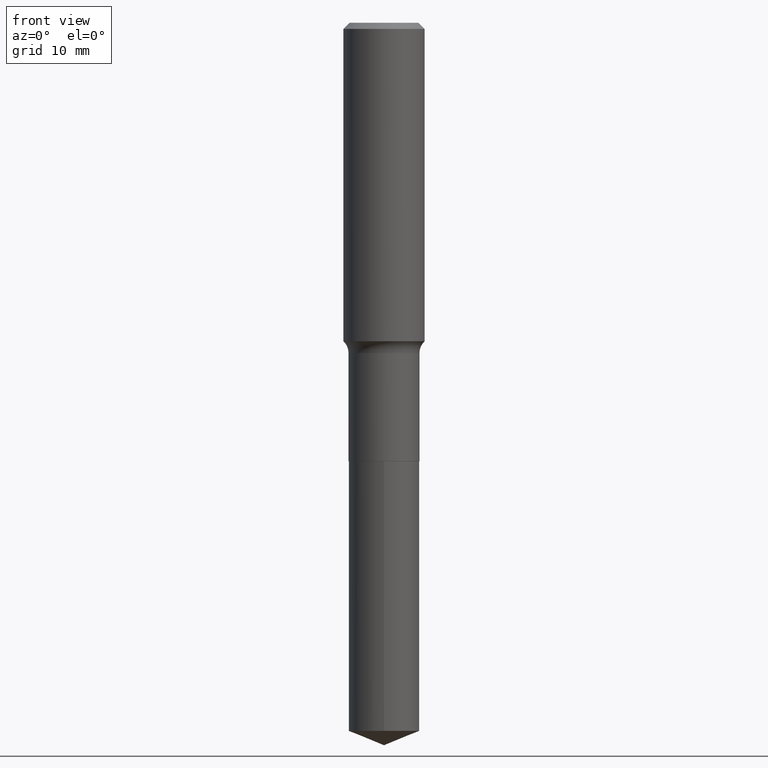
[diagram: clean part render]
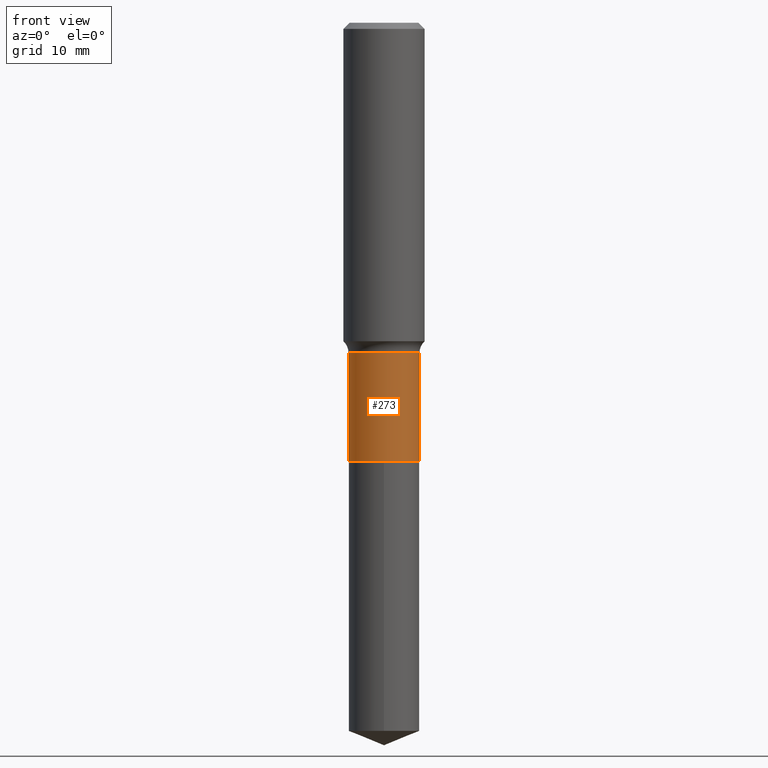
[diagram: same view with one face highlighted and labeled with its STEP entity id]
A machine part, front view. The second image highlights one B-rep face of the part: STEP entity #273.
In plain terms, the highlighted cylindrical surface (edge-blend (fillet) strip) has radius 4.3663 mm, axis along (-0, 0, 1).
Its self-contained STEP definition (entity closure, byte-faithful):
#10 = EDGE_CURVE ( 'NONE', #80, #401, #70, .T. ) ;
#13 = VECTOR ( 'NONE', #168, 39.37007874015748143 ) ;
#24 = CARTESIAN_POINT ( 'NONE',  ( 0.1718999999999999695, -8.621165721871490856E-15, -2.125399999999999956 ) ) ;
#61 = FACE_OUTER_BOUND ( 'NONE', #66, .T. ) ;
#66 = EDGE_LOOP ( 'NONE', ( #460, #435, #369, #183 ) ) ;
#70 = CIRCLE ( 'NONE', #422, 0.1718999999999999140 ) ;
#80 = VERTEX_POINT ( 'NONE', #159 ) ;
#104 = VECTOR ( 'NONE', #197, 39.37007874015748143 ) ;
#106 = CARTESIAN_POINT ( 'NONE',  ( 5.197599400665889285E-29, -7.420794437577220826E-15, -2.125399999999999956 ) ) ;
#108 = VERTEX_POINT ( 'NONE', #24 ) ;
#120 = DIRECTION ( 'NONE',  ( -2.445468806185136597E-29, 3.491481338843145583E-15, 1.000000000000000000 ) ) ;
#127 = CARTESIAN_POINT ( 'NONE',  ( 0.000000000000000000, 0.000000000000000000, 0.000000000000000000 ) ) ;
#147 = CARTESIAN_POINT ( 'NONE',  ( -0.1718999999999999695, -5.285476234363415221E-15, -2.125399999999999956 ) ) ;
#154 = VERTEX_POINT ( 'NONE', #147 ) ;
#159 = CARTESIAN_POINT ( 'NONE',  ( -0.1718999999999999140, -5.285476234363416009E-15, -1.601899999999999880 ) ) ;
#168 = DIRECTION ( 'NONE',  ( -2.445468806185136877E-29, 3.491481338843145188E-15, 1.000000000000000000 ) ) ;
#171 = EDGE_CURVE ( 'NONE', #108, #401, #180, .T. ) ;
#180 = LINE ( 'NONE', #193, #104 ) ;
#183 = ORIENTED_EDGE ( 'NONE', *, *, #10, .F. ) ;
#189 = DIRECTION ( 'NONE',  ( -2.445468806185136597E-29, 3.491481338843145583E-15, 1.000000000000000000 ) ) ;
#193 = CARTESIAN_POINT ( 'NONE',  ( 0.1718999999999999417, -1.200371284294268847E-15, 8.382147877593211677E-30 ) ) ;
#197 = DIRECTION ( 'NONE',  ( -2.445468806185136877E-29, 3.491481338843145188E-15, 1.000000000000000000 ) ) ;
#220 = AXIS2_PLACEMENT_3D ( 'NONE', #127, #357, #480 ) ;
#254 = AXIS2_PLACEMENT_3D ( 'NONE', #106, #189, #488 ) ;
#263 = EDGE_CURVE ( 'NONE', #154, #108, #368, .T. ) ;
#273 = ADVANCED_FACE ( 'NONE', ( #61 ), #349, .T. ) ;
#292 = CARTESIAN_POINT ( 'NONE',  ( -0.1718999999999999417, 1.221422962771611806E-15, -8.455649420148180377E-30 ) ) ;
#309 = CARTESIAN_POINT ( 'NONE',  ( 3.917396480627969967E-29, -5.593003956692834804E-15, -1.601899999999999880 ) ) ;
#349 = CYLINDRICAL_SURFACE ( 'NONE', #220, 0.1718999999999999417 ) ;
#357 = DIRECTION ( 'NONE',  ( -2.445468806185136597E-29, 3.491481338843145583E-15, 1.000000000000000000 ) ) ;
#362 = CARTESIAN_POINT ( 'NONE',  ( 0.1718999999999999140, -6.793375240987103256E-15, -1.601899999999999880 ) ) ;
#363 = EDGE_CURVE ( 'NONE', #154, #80, #394, .T. ) ;
#368 = CIRCLE ( 'NONE', #254, 0.1718999999999999695 ) ;
#369 = ORIENTED_EDGE ( 'NONE', *, *, #171, .T. ) ;
#394 = LINE ( 'NONE', #292, #13 ) ;
#401 = VERTEX_POINT ( 'NONE', #362 ) ;
#419 = DIRECTION ( 'NONE',  ( 1.000000000000000000, -6.982962677686264344E-15, 0.000000000000000000 ) ) ;
#422 = AXIS2_PLACEMENT_3D ( 'NONE', #309, #120, #419 ) ;
#435 = ORIENTED_EDGE ( 'NONE', *, *, #263, .T. ) ;
#460 = ORIENTED_EDGE ( 'NONE', *, *, #363, .F. ) ;
#480 = DIRECTION ( 'NONE',  ( 1.000000000000000000, -6.982962677686266711E-15, 4.876176775795936353E-29 ) ) ;
#488 = DIRECTION ( 'NONE',  ( 1.000000000000000000, -6.982962677686268288E-15, 0.000000000000000000 ) ) ;